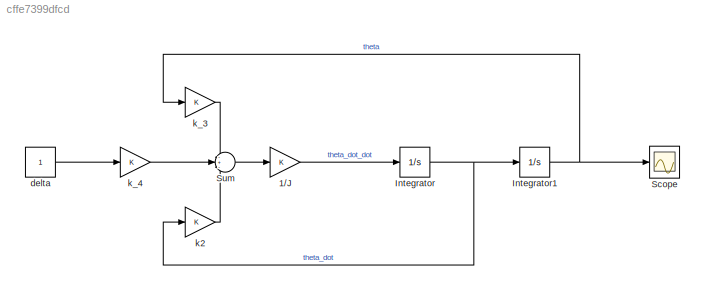
MODEL slx_cffe7399dfcd
KIND model
CONFIG AbsTol = auto
CONFIG EnableMultiTasking = off
CONFIG FixedStep = auto
CONFIG MaxStep = auto
CONFIG MinStep = auto
CONFIG RelTol = 1e-3
CONFIG SampleTimeConstraint = Unconstrained
CONFIG SolverName = VariableStepAuto
CONFIG StartTime = 0.0
CONFIG StopTime = 10.0
BLOCK [Gain] 1//J
BLOCK [Integrator] Integrator
BLOCK [Integrator] Integrator1
BLOCK [Scope] Scope
  Floating = off
  NumInputPorts = 1
  ScopeSpecificationString = Simulink.scopes.TimeScopeBlockCfg('CurrentConfiguration', extmgr.ConfigurationSet(extmgr.Configuration('Core','General UI',true),extmgr.Configuration('Core','Source UI',true),extmgr.Configuration('Sources','WiredSimulink',true),extmgr.Configuration('Visuals','Time Domain',true),extmgr.Configuration('Tools','Plot Navigation',true),extmgr.Configuration('Tools','Measurements',true)),'Version','2023a'...<+1ch>
BLOCK [Sum] Sum
  Inputs = -+-
BLOCK [Constant] delta
BLOCK [Gain] k2
BLOCK [Gain] k_3
BLOCK [Gain] k_4
LINE 1//J:1 -> Integrator:1
NET Integrator1:1 -> Scope:1, k_3:1
NET Integrator:1 -> Integrator1:1, k2:1
LINE Sum:1 -> 1//J:1
LINE delta:1 -> k_4:1
LINE k2:1 -> Sum:3
LINE k_3:1 -> Sum:1
LINE k_4:1 -> Sum:2
note: NET lines group one-source signal fan-out (src -> all destinations, sorted); 1:1 wires keep LINE
